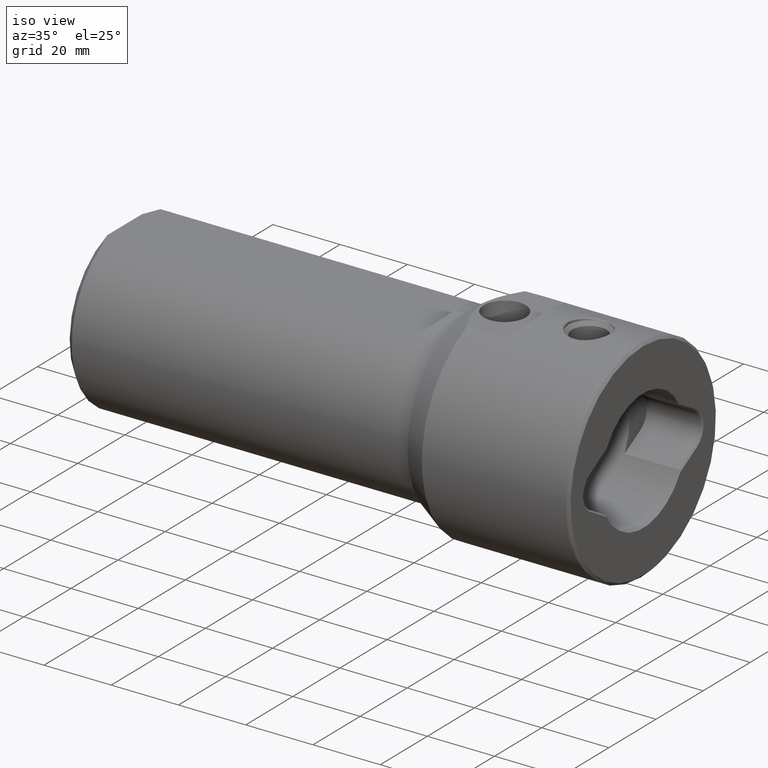
[diagram: clean part render]
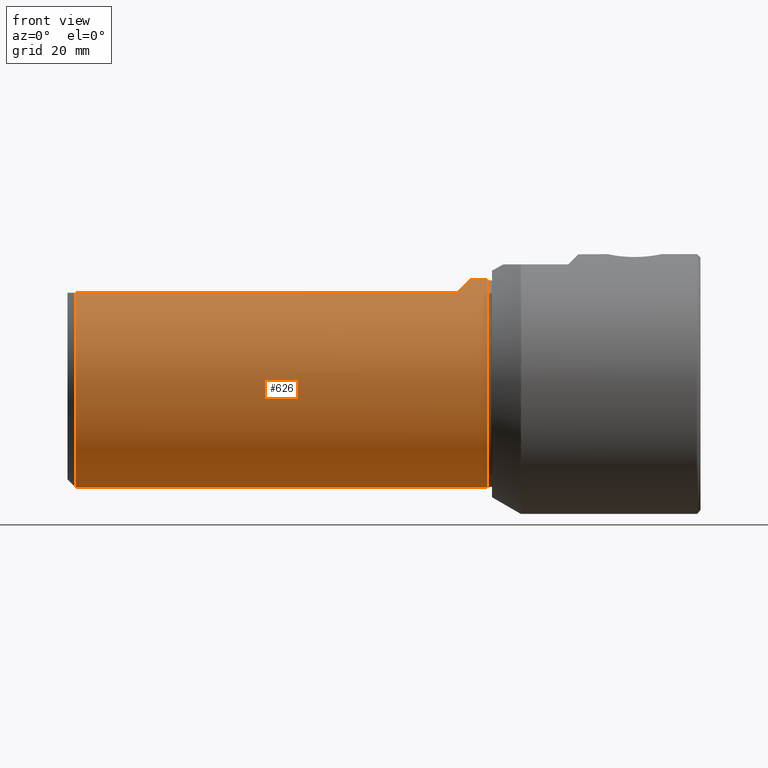
[diagram: tour spotlight — one face highlighted and labeled with its STEP entity id]
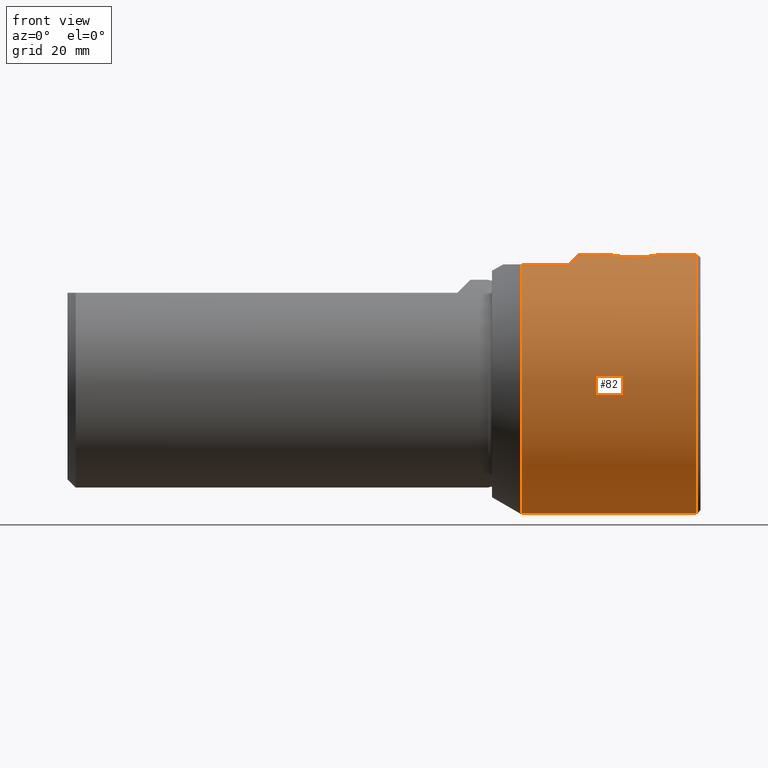
[diagram: tour spotlight — one face highlighted and labeled with its STEP entity id]
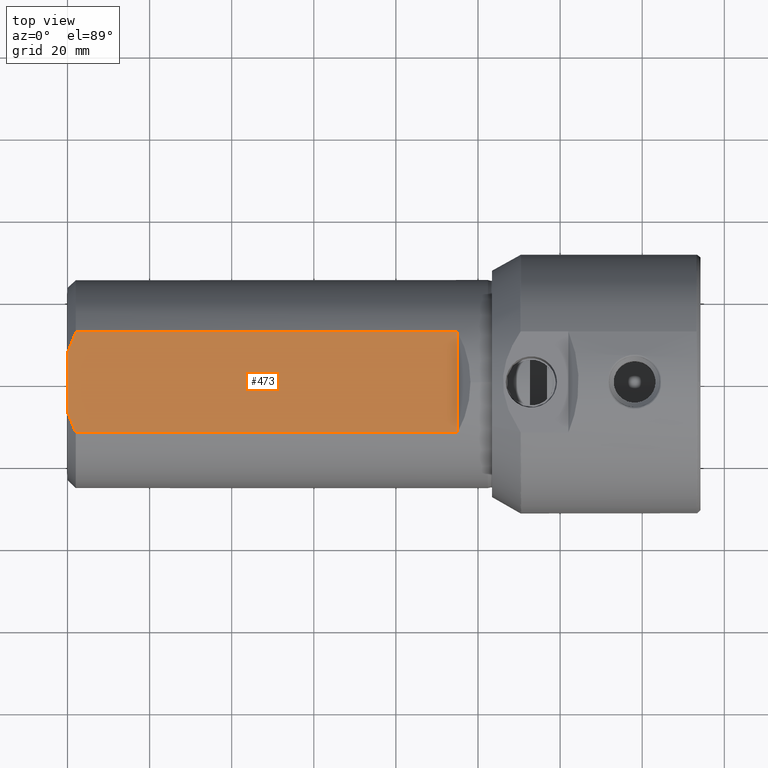
[diagram: tour spotlight — one face highlighted and labeled with its STEP entity id]
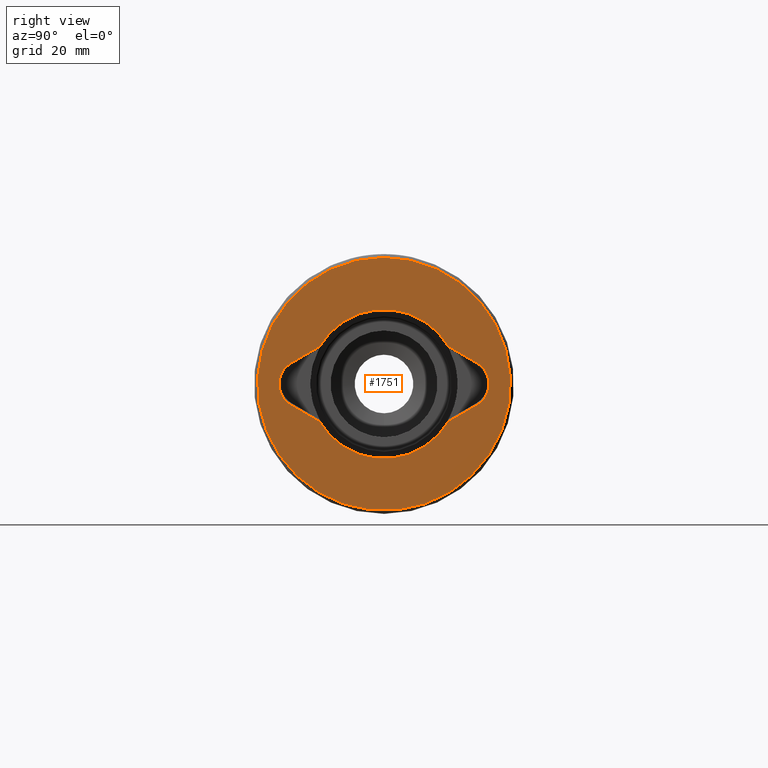
[diagram: tour spotlight — one face highlighted and labeled with its STEP entity id]
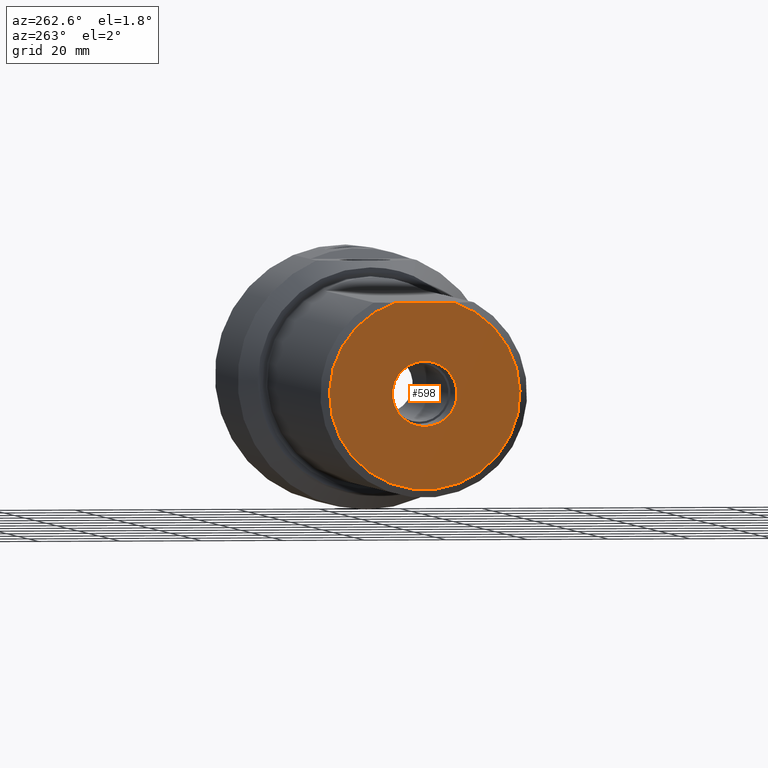
[diagram: tour spotlight — one face highlighted and labeled with its STEP entity id]
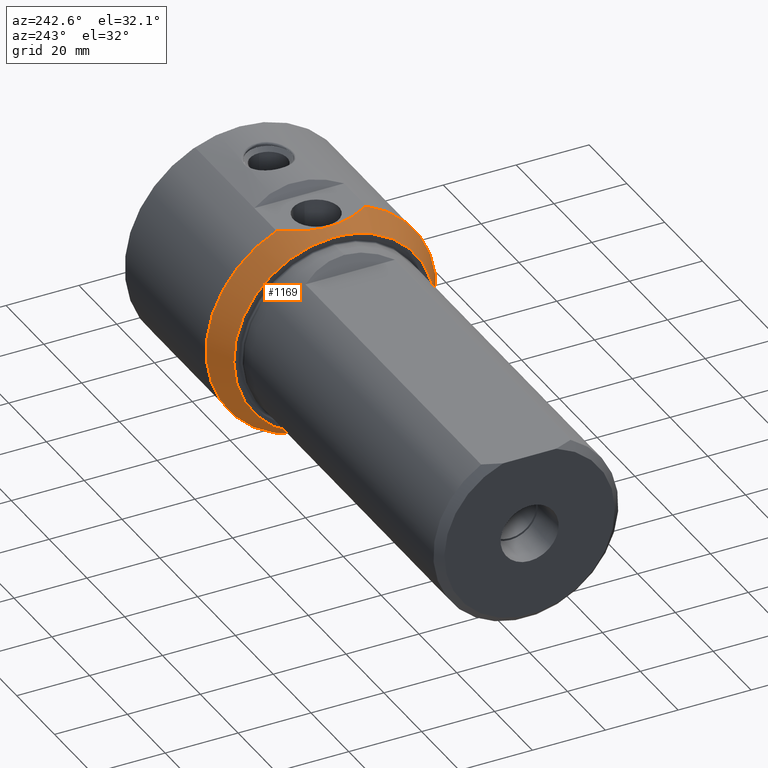
[diagram: tour spotlight — one face highlighted and labeled with its STEP entity id]
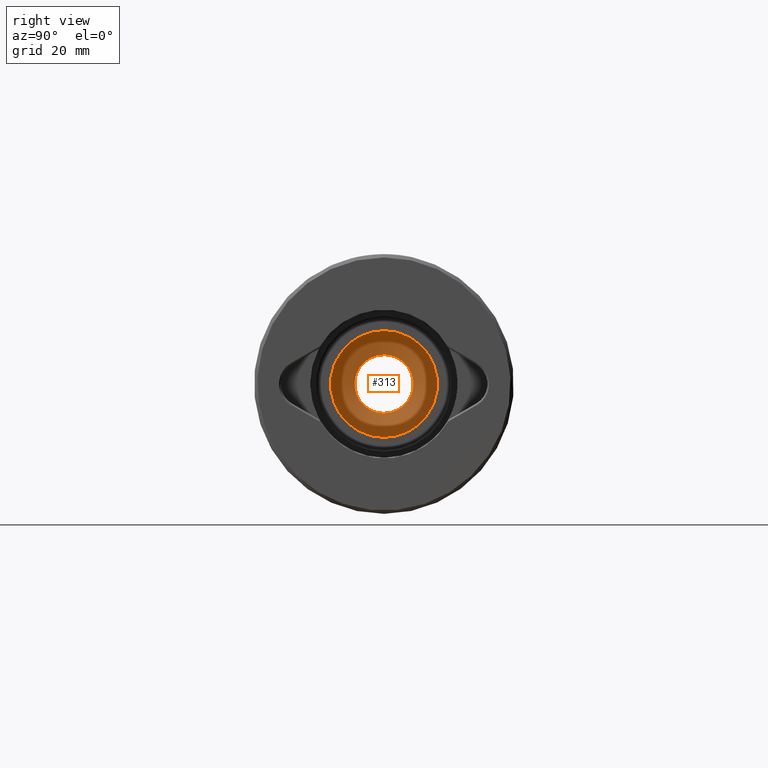
[diagram: tour spotlight — one face highlighted and labeled with its STEP entity id]
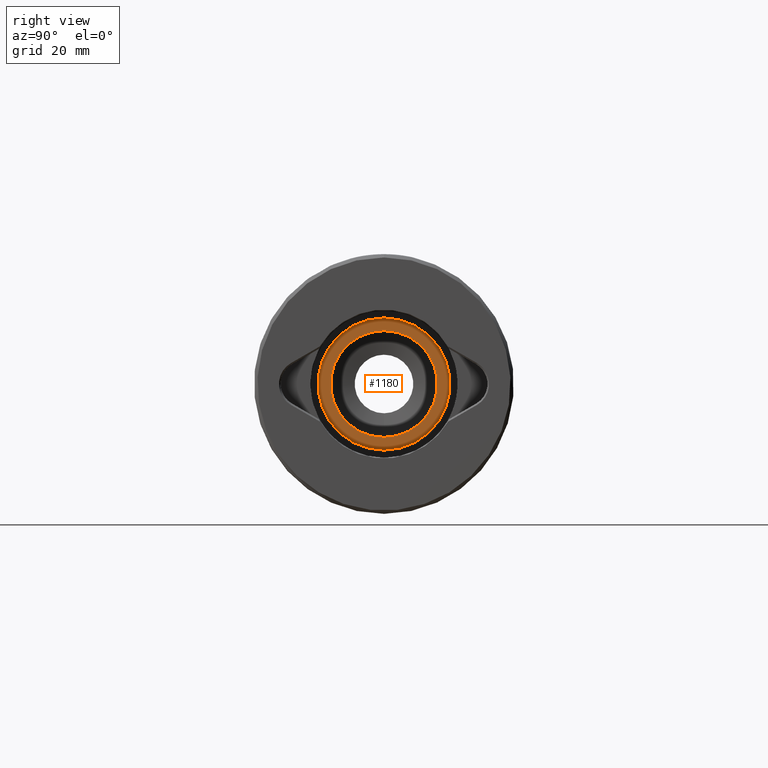
[diagram: tour spotlight — one face highlighted and labeled with its STEP entity id]
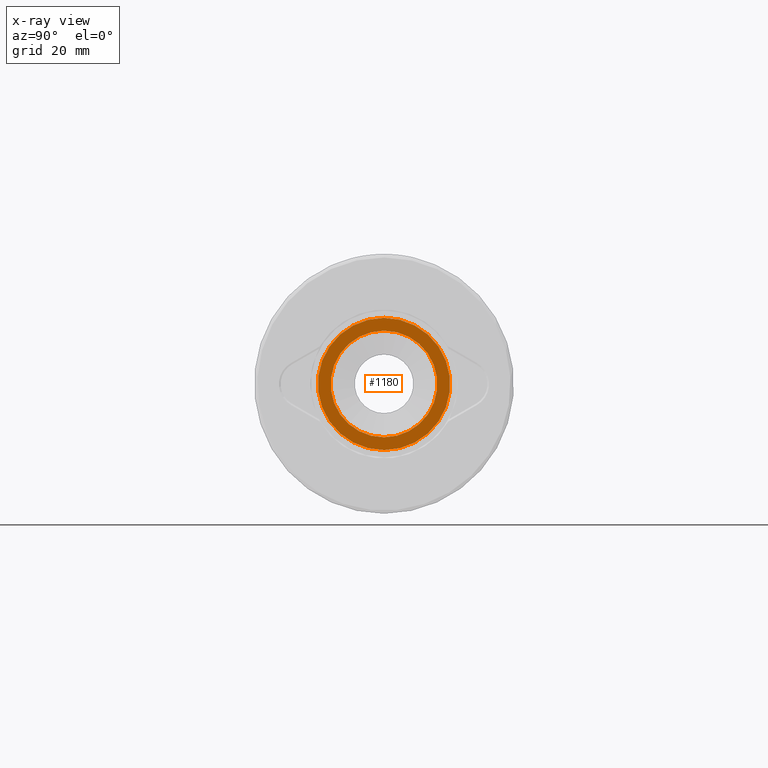
[diagram: x-ray of the same camera — body ghosted, this tour face saturated]
A machine part: a face-by-face anatomy tour. The part has 63 B-rep faces; the first image is the clean iso view, then the 8 largest visible faces are spotlighted one at a time (largest first), each with its STEP entity span.

Face 1 — front view, entity #626. In plain terms, the highlighted cylindrical surface (bore or boss wall) has radius 25.395 mm, axis along (-1, -0, -0).
Definition (entity closure, byte-faithful):
#13 = CARTESIAN_POINT ( 'NONE',  ( 1.999999999999992673, 0.0000000000000000000, 0.0000000000000000000 ) ) ;
#56 = CIRCLE ( 'NONE', #310, 25.39499999999999957 ) ;
#104 = DIRECTION ( 'NONE',  ( -1.000000000000000000, -0.0000000000000000000, -0.0000000000000000000 ) ) ;
#144 = CIRCLE ( 'NONE', #1590, 25.39499999999999957 ) ;
#175 = VERTEX_POINT ( 'NONE', #607 ) ;
#234 = CYLINDRICAL_SURFACE ( 'NONE', #1356, 25.39499999999999957 ) ;
#239 = ORIENTED_EDGE ( 'NONE', *, *, #1669, .T. ) ;
#280 = CARTESIAN_POINT ( 'NONE',  ( 1.999999999999991340, 12.27734193545166619, 22.23000000000000043 ) ) ;
#283 = CARTESIAN_POINT ( 'NONE',  ( 95.00000000000000000, 12.27734193545166441, 22.23000000000000043 ) ) ;
#310 = AXIS2_PLACEMENT_3D ( 'NONE', #1919, #104, #2280 ) ;
#494 = VERTEX_POINT ( 'NONE', #283 ) ;
#517 = FACE_OUTER_BOUND ( 'NONE', #1373, .T. ) ;
#607 = CARTESIAN_POINT ( 'NONE',  ( 95.00000000000000000, -12.27734193545166441, 22.23000000000000043 ) ) ;
#626 = ADVANCED_FACE ( 'NONE', ( #2363, #517 ), #234, .T. ) ;
#644 = CARTESIAN_POINT ( 'NONE',  ( 0.0000000000000000000, -12.27734193545166619, 22.23000000000000043 ) ) ;
#777 = DIRECTION ( 'NONE',  ( 0.0000000000000000000, 0.0000000000000000000, 1.000000000000000000 ) ) ;
#796 = EDGE_LOOP ( 'NONE', ( #855, #1506, #1996, #239 ) ) ;
#829 = DIRECTION ( 'NONE',  ( 1.000000000000000000, 0.0000000000000000000, 0.0000000000000000000 ) ) ;
#837 = CARTESIAN_POINT ( 'NONE',  ( 1.999999999999992673, -12.27734193545166619, 22.23000000000000043 ) ) ;
#855 = ORIENTED_EDGE ( 'NONE', *, *, #1455, .F. ) ;
#993 = DIRECTION ( 'NONE',  ( -1.000000000000000000, -0.0000000000000000000, -0.0000000000000000000 ) ) ;
#1041 = CARTESIAN_POINT ( 'NONE',  ( 102.4009288394512538, 0.0000000000000000000, 25.39499999999999957 ) ) ;
#1190 = VERTEX_POINT ( 'NONE', #1041 ) ;
#1355 = DIRECTION ( 'NONE',  ( -1.000000000000000000, -0.0000000000000000000, -0.0000000000000000000 ) ) ;
#1356 = AXIS2_PLACEMENT_3D ( 'NONE', #1706, #1355, #777 ) ;
#1361 = CARTESIAN_POINT ( 'NONE',  ( 0.0000000000000000000, 12.27734193545166619, 22.23000000000000043 ) ) ;
#1373 = EDGE_LOOP ( 'NONE', ( #1818 ) ) ;
#1380 = CARTESIAN_POINT ( 'NONE',  ( 95.00000000000000000, 12.27734193545166441, 22.23000000000000043 ) ) ;
#1455 = EDGE_CURVE ( 'NONE', #1568, #2052, #144, .T. ) ;
#1506 = ORIENTED_EDGE ( 'NONE', *, *, #1685, .T. ) ;
#1528 = VECTOR ( 'NONE', #993, 1000.000000000000000 ) ;
#1557 = CARTESIAN_POINT ( 'NONE',  ( 99.31560017178448163, 4.463289649284877925, 26.54560017178441811 ) ) ;
#1568 = VERTEX_POINT ( 'NONE', #280 ) ;
#1590 = AXIS2_PLACEMENT_3D ( 'NONE', #13, #2031, #1838 ) ;
#1603 = EDGE_CURVE ( 'NONE', #1190, #1190, #56, .T. ) ;
#1665 =( BOUNDED_CURVE ( )  B_SPLINE_CURVE ( 3, ( #1380, #1557, #2260, #1932 ),
 .UNSPECIFIED., .F., .F. ) 
 B_SPLINE_CURVE_WITH_KNOTS ( ( 4, 4 ),
 ( 2.636995217990977913, 3.646190089188608319 ),
 .UNSPECIFIED. ) 
 CURVE ( )  GEOMETRIC_REPRESENTATION_ITEM ( )  RATIONAL_B_SPLINE_CURVE ( ( 1.000000000000000000, 0.9169127781059263071, 0.9169127781059263071, 1.000000000000000000 ) ) 
 REPRESENTATION_ITEM ( '' )  );
#1669 = EDGE_CURVE ( 'NONE', #175, #2052, #2076, .T. ) ;
#1685 = EDGE_CURVE ( 'NONE', #1568, #494, #1699, .T. ) ;
#1699 = LINE ( 'NONE', #1361, #1940 ) ;
#1703 = EDGE_CURVE ( 'NONE', #494, #175, #1665, .T. ) ;
#1706 = CARTESIAN_POINT ( 'NONE',  ( 0.0000000000000000000, 0.0000000000000000000, 0.0000000000000000000 ) ) ;
#1818 = ORIENTED_EDGE ( 'NONE', *, *, #1603, .T. ) ;
#1838 = DIRECTION ( 'NONE',  ( 0.0000000000000000000, 0.0000000000000000000, 1.000000000000000000 ) ) ;
#1919 = CARTESIAN_POINT ( 'NONE',  ( 102.4009288394512538, 0.0000000000000000000, 0.0000000000000000000 ) ) ;
#1932 = CARTESIAN_POINT ( 'NONE',  ( 95.00000000000000000, -12.27734193545166441, 22.23000000000000043 ) ) ;
#1940 = VECTOR ( 'NONE', #829, 1000.000000000000000 ) ;
#1996 = ORIENTED_EDGE ( 'NONE', *, *, #1703, .T. ) ;
#2031 = DIRECTION ( 'NONE',  ( -1.000000000000000000, -0.0000000000000000000, -0.0000000000000000000 ) ) ;
#2052 = VERTEX_POINT ( 'NONE', #837 ) ;
#2076 = LINE ( 'NONE', #644, #1528 ) ;
#2260 = CARTESIAN_POINT ( 'NONE',  ( 99.31560017178448163, -4.463289649284870819, 26.54560017178441811 ) ) ;
#2280 = DIRECTION ( 'NONE',  ( 0.0000000000000000000, 0.0000000000000000000, 1.000000000000000000 ) ) ;
#2363 = FACE_OUTER_BOUND ( 'NONE', #796, .T. ) ;

Face 2 — front view, entity #82. In plain terms, the highlighted cylindrical surface (bore or boss wall) has radius 31.635 mm, axis along (-1, -0, -0).
Definition (entity closure, byte-faithful):
#12 = CARTESIAN_POINT ( 'NONE',  ( 131.5999999999999659, 0.6662268094102885563, 31.63500000000000512 ) ) ;
#14 = CARTESIAN_POINT ( 'NONE',  ( 122.0000000000000000, 12.32578597899539830, 29.13500000000000512 ) ) ;
#22 = CARTESIAN_POINT ( 'NONE',  ( 132.5506533533074673, -3.457613181252277457, 31.44666515607788426 ) ) ;
#42 = ORIENTED_EDGE ( 'NONE', *, *, #2128, .T. ) ;
#46 = CARTESIAN_POINT ( 'NONE',  ( 125.3796785495801487, 4.337091812975025107, 32.51467854958011827 ) ) ;
#47 = EDGE_CURVE ( 'NONE', #688, #91, #294, .T. ) ;
#52 = B_SPLINE_CURVE_WITH_KNOTS ( 'NONE', 3,
 ( #1096, #12, #706, #1273, #2007, #1102, #1798, #715, #540, #1986, #1438, #1257, #378, #888, #913, #1448 ),
 .UNSPECIFIED., .F., .F.,
 ( 4, 2, 2, 2, 2, 2, 2, 4 ),
 ( 0.0000000000000000000, 0.001970579614853971203, 0.002955869422280956588, 0.003941159229707942406, 0.004926449037134928224, 0.005911738844561913175, 0.006897028651988898994, 0.007882318459415884812 ),
 .UNSPECIFIED. ) ;
#59 = ORIENTED_EDGE ( 'NONE', *, *, #1234, .T. ) ;
#62 = CARTESIAN_POINT ( 'NONE',  ( 142.5017102966587856, -4.969066998023143888, 31.24300467834241601 ) ) ;
#82 = ADVANCED_FACE ( 'NONE', ( #87, #1417, #2160 ), #1471, .T. ) ;
#87 = FACE_OUTER_BOUND ( 'NONE', #1850, .T. ) ;
#91 = VERTEX_POINT ( 'NONE', #2217 ) ;
#100 = CARTESIAN_POINT ( 'NONE',  ( 137.3265461552899751, 6.585463044401746124, 30.94205481688282333 ) ) ;
#106 = CARTESIAN_POINT ( 'NONE',  ( 138.9653315842665506, 6.586521417680179624, 30.94182897074907501 ) ) ;
#114 = CARTESIAN_POINT ( 'NONE',  ( 144.6751916609865134, 0.6652512634396512414, 31.62970337563371359 ) ) ;
#119 = CARTESIAN_POINT ( 'NONE',  ( 136.1287134334713187, -6.323870600001309406, 30.99687469056651423 ) ) ;
#123 = CARTESIAN_POINT ( 'NONE',  ( 144.6999999999999602, 0.3327270208880150348, 31.63500000000000867 ) ) ;
#137 = CARTESIAN_POINT ( 'NONE',  ( 140.8598408556986783, 6.048681304741529097, 31.05160518033757455 ) ) ;
#269 = CARTESIAN_POINT ( 'NONE',  ( 153.2343145750507460, 0.0000000000000000000, 0.0000000000000000000 ) ) ;
#294 = B_SPLINE_CURVE_WITH_KNOTS ( 'NONE', 3,
 ( #398, #722, #1795, #1077, #587, #2204, #924, #1840, #419, #22, #2227, #1670, #565, #751, #1487, #2044, #1858, #578 ),
 .UNSPECIFIED., .F., .F.,
 ( 4, 2, 2, 2, 2, 2, 2, 2, 4 ),
 ( 0.01279259424008596241, 0.01377672293859905778, 0.01476085163711215315, 0.01574498033562524851, 0.01672910903413834388, 0.01771323773265143925, 0.01869736643116453462, 0.01968149512967762998, 0.02066562382819072535 ),
 .UNSPECIFIED. ) ;
#305 = EDGE_CURVE ( 'NONE', #2125, #975, #986, .T. ) ;
#314 = CARTESIAN_POINT ( 'NONE',  ( 144.6999999999999602, 0.0000000000000000000, 31.63500000000000512 ) ) ;
#336 = CARTESIAN_POINT ( 'NONE',  ( 141.1590925382374735, 5.901672339551494062, 31.08009094781710502 ) ) ;
#342 = EDGE_CURVE ( 'NONE', #91, #2244, #52, .T. ) ;
#348 = DIRECTION ( 'NONE',  ( 1.000000000000000000, 0.0000000000000000000, 0.0000000000000000000 ) ) ;
#357 = CIRCLE ( 'NONE', #1643, 31.63500000000000512 ) ;
#363 = DIRECTION ( 'NONE',  ( 1.000000000000000000, 0.0000000000000000000, 0.0000000000000000000 ) ) ;
#378 = CARTESIAN_POINT ( 'NONE',  ( 134.5795377672199322, 5.571550227173406533, 31.14096731286043607 ) ) ;
#394 = EDGE_LOOP ( 'NONE', ( #59, #1598, #879, #1853, #1981, #1247 ) ) ;
#398 = CARTESIAN_POINT ( 'NONE',  ( 135.7457329599233731, -6.170807685033554257, 31.02731631182966154 ) ) ;
#419 = CARTESIAN_POINT ( 'NONE',  ( 132.9146845297529751, -4.000113672255618091, 31.38227093374037935 ) ) ;
#470 = CARTESIAN_POINT ( 'NONE',  ( 136.5221245649671573, 6.435705635975445205, 30.97354956680355542 ) ) ;
#478 = CARTESIAN_POINT ( 'NONE',  ( 140.1711895141635864, -6.323909388189259850, 30.99686697625296006 ) ) ;
#483 = CARTESIAN_POINT ( 'NONE',  ( 144.6999999999999602, 0.0000000000000000000, 31.63500000000000512 ) ) ;
#508 = CARTESIAN_POINT ( 'NONE',  ( 137.3346684157334039, -6.586521417680179624, 30.94182897074907501 ) ) ;
#540 = CARTESIAN_POINT ( 'NONE',  ( 133.1188809254257137, 4.260572377719202386, 31.34773667874214809 ) ) ;
#542 = B_SPLINE_CURVE_WITH_KNOTS ( 'NONE', 3,
 ( #1950, #478, #1593, #1776, #1024, #2297, #508, #1743, #119, #1963 ),
 .UNSPECIFIED., .F., .F.,
 ( 4, 2, 2, 2, 4 ),
 ( 0.0000000000000000000, 0.001240983473876754867, 0.002481966947753509733, 0.003722950421630264600, 0.004963933895507019467 ),
 .UNSPECIFIED. ) ;
#565 = CARTESIAN_POINT ( 'NONE',  ( 131.9858768406900822, -2.267139640925206034, 31.55521729333176495 ) ) ;
#571 = AXIS2_PLACEMENT_3D ( 'NONE', #1864, #953, #933 ) ;
#577 = CARTESIAN_POINT ( 'NONE',  ( 141.9936101848507235, -5.381728688412128037, 31.17457240261829554 ) ) ;
#578 = CARTESIAN_POINT ( 'NONE',  ( 131.5999999999999659, 0.0000000000000000000, 31.63500000000000512 ) ) ;
#585 = CARTESIAN_POINT ( 'NONE',  ( 143.1811190745742408, -4.260572377719202386, 31.34773667874214809 ) ) ;
#587 = CARTESIAN_POINT ( 'NONE',  ( 134.3080842118202725, -5.382969198250447285, 31.17435764827537525 ) ) ;
#628 = B_SPLINE_CURVE_WITH_KNOTS ( 'NONE', 3,
 ( #2283, #137, #336, #1404, #847, #1739, #2137, #1935, #2131, #1960, #2294, #1029, #2304, #658, #2289, #114, #123, #483 ),
 .UNSPECIFIED., .F., .F.,
 ( 4, 2, 2, 2, 2, 2, 2, 2, 4 ),
 ( 0.01279259424008596241, 0.01377672293859905778, 0.01476085163711215315, 0.01574498033562524851, 0.01672910903413834388, 0.01771323773265143925, 0.01869736643116453462, 0.01968149512967762998, 0.02066562382819072535 ),
 .UNSPECIFIED. ) ;
#658 = CARTESIAN_POINT ( 'NONE',  ( 144.5047185915709633, 1.640848861925930935, 31.59397530531975917 ) ) ;
#675 = CARTESIAN_POINT ( 'NONE',  ( 136.1288104858363965, 6.323909388189259850, 30.99686697625296006 ) ) ;
#688 = VERTEX_POINT ( 'NONE', #1383 ) ;
#706 = CARTESIAN_POINT ( 'NONE',  ( 131.6968939040913256, 1.315651212169514306, 31.61399237298687126 ) ) ;
#715 = CARTESIAN_POINT ( 'NONE',  ( 132.9132556591819139, 3.998345751479671417, 31.38251056538712191 ) ) ;
#722 = CARTESIAN_POINT ( 'NONE',  ( 135.4401591443012762, -6.048681304741529097, 31.05160518033757455 ) ) ;
#723 = B_SPLINE_CURVE_WITH_KNOTS ( 'NONE', 3,
 ( #1294, #899, #1657, #2176, #1261, #2010, #1279, #952, #585, #1321, #62, #577, #2215, #1312, #2042, #1686 ),
 .UNSPECIFIED., .F., .F.,
 ( 4, 2, 2, 2, 2, 2, 2, 4 ),
 ( 0.0000000000000000000, 0.001970579614853971203, 0.002955869422280956588, 0.003941159229707942406, 0.004926449037134928224, 0.005911738844561913175, 0.006897028651988898994, 0.007882318459415884812 ),
 .UNSPECIFIED. ) ;
#742 = CARTESIAN_POINT ( 'NONE',  ( 122.0000000000000000, 12.32578597899539830, 29.13500000000000512 ) ) ;
#751 = CARTESIAN_POINT ( 'NONE',  ( 131.7952814084290196, -1.640848861925930935, 31.59397530531975917 ) ) ;
#771 = CARTESIAN_POINT ( 'NONE',  ( 125.3796785495801203, -4.337091812975017113, 32.51467854958011827 ) ) ;
#779 = EDGE_CURVE ( 'NONE', #2244, #1823, #1148, .T. ) ;
#836 = CARTESIAN_POINT ( 'NONE',  ( 139.7721463043777703, 6.437218221270364360, 30.97323467144481768 ) ) ;
#847 = CARTESIAN_POINT ( 'NONE',  ( 141.9919157881796252, 5.382969198250447285, 31.17435764827537525 ) ) ;
#850 = CARTESIAN_POINT ( 'NONE',  ( 140.5542670400765530, 6.170807685033554257, 31.02731631182966154 ) ) ;
#879 = ORIENTED_EDGE ( 'NONE', *, *, #2013, .T. ) ;
#884 = EDGE_LOOP ( 'NONE', ( #944, #909, #42, #1252 ) ) ;
#888 = CARTESIAN_POINT ( 'NONE',  ( 135.1476295202028552, 5.905285085678491086, 31.07940837872274642 ) ) ;
#892 = EDGE_CURVE ( 'NONE', #2086, #2125, #357, .T. ) ;
#899 = CARTESIAN_POINT ( 'NONE',  ( 144.6999999999999318, -0.6662268094102885563, 31.63500000000000512 ) ) ;
#909 = ORIENTED_EDGE ( 'NONE', *, *, #305, .T. ) ;
#913 = CARTESIAN_POINT ( 'NONE',  ( 135.4417040403233159, 6.049298741671810475, 31.05148238259003435 ) ) ;
#924 = CARTESIAN_POINT ( 'NONE',  ( 133.5580739424848105, -4.742152168405135981, 31.27851102722559773 ) ) ;
#933 = DIRECTION ( 'NONE',  ( 0.0000000000000000000, 0.0000000000000000000, 1.000000000000000000 ) ) ;
#944 = ORIENTED_EDGE ( 'NONE', *, *, #892, .T. ) ;
#952 = CARTESIAN_POINT ( 'NONE',  ( 143.3867443408180122, -3.998345751479671417, 31.38251056538712191 ) ) ;
#953 = DIRECTION ( 'NONE',  ( -1.000000000000000000, -0.0000000000000000000, -0.0000000000000000000 ) ) ;
#962 = DIRECTION ( 'NONE',  ( -1.000000000000000000, -0.0000000000000000000, -0.0000000000000000000 ) ) ;
#963 = ORIENTED_EDGE ( 'NONE', *, *, #1614, .T. ) ;
#975 = VERTEX_POINT ( 'NONE', #742 ) ;
#984 = VERTEX_POINT ( 'NONE', #1747 ) ;
#986 = LINE ( 'NONE', #1965, #1559 ) ;
#1004 = DIRECTION ( 'NONE',  ( 0.0000000000000000000, 0.0000000000000000000, -1.000000000000000000 ) ) ;
#1024 = CARTESIAN_POINT ( 'NONE',  ( 138.5589391851679579, -6.622979060358136216, 30.93395179032373576 ) ) ;
#1029 = CARTESIAN_POINT ( 'NONE',  ( 144.1960530629409902, 2.573161673297229779, 31.53160360223775882 ) ) ;
#1031 = VERTEX_POINT ( 'NONE', #1538 ) ;
#1056 = AXIS2_PLACEMENT_3D ( 'NONE', #269, #2099, #1004 ) ;
#1077 = CARTESIAN_POINT ( 'NONE',  ( 134.5762084841699675, -5.569252110138257272, 31.14137473943193513 ) ) ;
#1096 = CARTESIAN_POINT ( 'NONE',  ( 131.5999999999999659, 0.0000000000000000000, 31.63500000000000512 ) ) ;
#1102 = CARTESIAN_POINT ( 'NONE',  ( 132.3859899190538556, 3.167990285812800622, 31.47738153234020686 ) ) ;
#1148 = B_SPLINE_CURVE_WITH_KNOTS ( 'NONE', 3,
 ( #1546, #675, #470, #100, #2104, #1730, #106, #836, #1377, #1741 ),
 .UNSPECIFIED., .F., .F.,
 ( 4, 2, 2, 2, 4 ),
 ( 0.0000000000000000000, 0.001240983473876754867, 0.002481966947753509733, 0.003722950421630264600, 0.004963933895507019467 ),
 .UNSPECIFIED. ) ;
#1234 = EDGE_CURVE ( 'NONE', #1823, #1731, #628, .T. ) ;
#1247 = ORIENTED_EDGE ( 'NONE', *, *, #779, .T. ) ;
#1252 = ORIENTED_EDGE ( 'NONE', *, *, #2255, .T. ) ;
#1257 = CARTESIAN_POINT ( 'NONE',  ( 134.3063898151492594, 5.381728688412128037, 31.17457240261829554 ) ) ;
#1261 = CARTESIAN_POINT ( 'NONE',  ( 144.1949302642391046, -2.575516118635866825, 31.53138796986526415 ) ) ;
#1273 = CARTESIAN_POINT ( 'NONE',  ( 131.9849905616314629, 2.265165056127945054, 31.55539270847909705 ) ) ;
#1279 = CARTESIAN_POINT ( 'NONE',  ( 143.7524804788475592, -3.452576960663543471, 31.44723279504423630 ) ) ;
#1294 = CARTESIAN_POINT ( 'NONE',  ( 144.6999999999999602, 0.0000000000000000000, 31.63500000000000512 ) ) ;
#1312 = CARTESIAN_POINT ( 'NONE',  ( 141.1523704797970993, -5.905285085678491086, 31.07940837872274642 ) ) ;
#1321 = CARTESIAN_POINT ( 'NONE',  ( 142.7391720171458758, -4.744863363156295755, 31.27809686554661184 ) ) ;
#1360 = LINE ( 'NONE', #1498, #1694 ) ;
#1377 = CARTESIAN_POINT ( 'NONE',  ( 140.1712865665286074, 6.323870600001309406, 30.99687469056651423 ) ) ;
#1383 = CARTESIAN_POINT ( 'NONE',  ( 135.7457329599233731, -6.170807685033554257, 31.02731631182966154 ) ) ;
#1394 = CIRCLE ( 'NONE', #1056, 31.63500000000000512 ) ;
#1404 = CARTESIAN_POINT ( 'NONE',  ( 141.7237915158298733, 5.569252110138257272, 31.14137473943193513 ) ) ;
#1417 = FACE_OUTER_BOUND ( 'NONE', #884, .T. ) ;
#1438 = CARTESIAN_POINT ( 'NONE',  ( 133.7982897033411405, 4.969066998023143888, 31.24300467834241601 ) ) ;
#1448 = CARTESIAN_POINT ( 'NONE',  ( 135.7457329599007778, 6.170807685024521483, 31.02731631183146277 ) ) ;
#1471 = CYLINDRICAL_SURFACE ( 'NONE', #571, 31.63500000000000512 ) ;
#1487 = CARTESIAN_POINT ( 'NONE',  ( 131.7227568092800141, -1.320580198760961332, 31.60912467647156987 ) ) ;
#1498 = CARTESIAN_POINT ( 'NONE',  ( 0.0000000000000000000, -12.32578597899540718, 29.13500000000000512 ) ) ;
#1507 = CARTESIAN_POINT ( 'NONE',  ( 122.0000000000000000, -12.32578597899540007, 29.13500000000000512 ) ) ;
#1538 = CARTESIAN_POINT ( 'NONE',  ( 140.5542670400991483, -6.170807685024521483, 31.02731631183146277 ) ) ;
#1546 = CARTESIAN_POINT ( 'NONE',  ( 135.7457329599007778, 6.170807685024521483, 31.02731631183146277 ) ) ;
#1559 = VECTOR ( 'NONE', #348, 1000.000000000000000 ) ;
#1593 = CARTESIAN_POINT ( 'NONE',  ( 139.7778754350327972, -6.435705635975445205, 30.97354956680355542 ) ) ;
#1598 = ORIENTED_EDGE ( 'NONE', *, *, #2108, .T. ) ;
#1614 = EDGE_CURVE ( 'NONE', #984, #984, #1394, .T. ) ;
#1620 = CARTESIAN_POINT ( 'NONE',  ( 110.5071796769724415, 0.0000000000000000000, 0.0000000000000000000 ) ) ;
#1643 = AXIS2_PLACEMENT_3D ( 'NONE', #1620, #363, #2157 ) ;
#1657 = CARTESIAN_POINT ( 'NONE',  ( 144.6031060959085721, -1.315651212169514306, 31.61399237298687126 ) ) ;
#1670 = CARTESIAN_POINT ( 'NONE',  ( 132.1039469370589643, -2.573161673297229779, 31.53160360223775882 ) ) ;
#1686 = CARTESIAN_POINT ( 'NONE',  ( 140.5542670400991483, -6.170807685024521483, 31.02731631183146277 ) ) ;
#1694 = VECTOR ( 'NONE', #962, 1000.000000000000000 ) ;
#1726 = CARTESIAN_POINT ( 'NONE',  ( 122.0000000000000000, -12.32578597899540007, 29.13500000000000512 ) ) ;
#1730 = CARTESIAN_POINT ( 'NONE',  ( 138.5590643895922653, 6.622971511814619738, 30.93395340647080616 ) ) ;
#1731 = VERTEX_POINT ( 'NONE', #314 ) ;
#1739 = CARTESIAN_POINT ( 'NONE',  ( 142.5001361595587923, 4.970480210993757808, 31.24277930408909754 ) ) ;
#1741 = CARTESIAN_POINT ( 'NONE',  ( 140.5542670400765530, 6.170807685033554257, 31.02731631182966154 ) ) ;
#1743 = CARTESIAN_POINT ( 'NONE',  ( 136.5278536956222410, -6.437218221270364360, 30.97323467144481768 ) ) ;
#1747 = CARTESIAN_POINT ( 'NONE',  ( 153.2343145750507460, 0.0000000000000000000, -31.63500000000000512 ) ) ;
#1776 = CARTESIAN_POINT ( 'NONE',  ( 138.9734538447099794, -6.585463044401746124, 30.94205481688282333 ) ) ;
#1795 = CARTESIAN_POINT ( 'NONE',  ( 135.1409074617624810, -5.901672339551494062, 31.08009094781710502 ) ) ;
#1798 = CARTESIAN_POINT ( 'NONE',  ( 132.5475195211523669, 3.452576960663543471, 31.44723279504423630 ) ) ;
#1823 = VERTEX_POINT ( 'NONE', #850 ) ;
#1840 = CARTESIAN_POINT ( 'NONE',  ( 133.1159925801048587, -4.257096638819273693, 31.34821187047733559 ) ) ;
#1850 = EDGE_LOOP ( 'NONE', ( #963 ) ) ;
#1853 = ORIENTED_EDGE ( 'NONE', *, *, #47, .T. ) ;
#1858 = CARTESIAN_POINT ( 'NONE',  ( 131.5999999999999375, -0.3327270208880150348, 31.63500000000000867 ) ) ;
#1864 = CARTESIAN_POINT ( 'NONE',  ( 0.0000000000000000000, 0.0000000000000000000, 0.0000000000000000000 ) ) ;
#1880 = CARTESIAN_POINT ( 'NONE',  ( 135.7457329599007778, 6.170807685024521483, 31.02731631183146277 ) ) ;
#1935 = CARTESIAN_POINT ( 'NONE',  ( 143.1840074198949821, 4.257096638819273693, 31.34821187047733559 ) ) ;
#1950 = CARTESIAN_POINT ( 'NONE',  ( 140.5542670400991483, -6.170807685024521483, 31.02731631183146277 ) ) ;
#1960 = CARTESIAN_POINT ( 'NONE',  ( 143.7493466466925156, 3.457613181252277457, 31.44666515607788426 ) ) ;
#1963 = CARTESIAN_POINT ( 'NONE',  ( 135.7457329599233731, -6.170807685033554257, 31.02731631182966154 ) ) ;
#1965 = CARTESIAN_POINT ( 'NONE',  ( 0.0000000000000000000, 12.32578597899540718, 29.13500000000000512 ) ) ;
#1981 = ORIENTED_EDGE ( 'NONE', *, *, #342, .T. ) ;
#1986 = CARTESIAN_POINT ( 'NONE',  ( 133.5608279828540503, 4.744863363156295755, 31.27809686554661184 ) ) ;
#2007 = CARTESIAN_POINT ( 'NONE',  ( 132.1050697357608499, 2.575516118635866825, 31.53138796986526415 ) ) ;
#2010 = CARTESIAN_POINT ( 'NONE',  ( 143.9140100809460705, -3.167990285812800622, 31.47738153234020686 ) ) ;
#2013 = EDGE_CURVE ( 'NONE', #1031, #688, #542, .T. ) ;
#2032 = CARTESIAN_POINT ( 'NONE',  ( 110.5071796769724699, -12.32578597899541428, 29.13500000000000512 ) ) ;
#2042 = CARTESIAN_POINT ( 'NONE',  ( 140.8582959596766386, -6.049298741671810475, 31.05148238259003435 ) ) ;
#2044 = CARTESIAN_POINT ( 'NONE',  ( 131.6248083390134127, -0.6652512634396512414, 31.62970337563371359 ) ) ;
#2086 = VERTEX_POINT ( 'NONE', #2032 ) ;
#2099 = DIRECTION ( 'NONE',  ( -1.000000000000000000, -0.0000000000000000000, -0.0000000000000000000 ) ) ;
#2104 = CARTESIAN_POINT ( 'NONE',  ( 137.7410608148319966, 6.622979060358136216, 30.93395179032373576 ) ) ;
#2108 = EDGE_CURVE ( 'NONE', #1731, #1031, #723, .T. ) ;
#2125 = VERTEX_POINT ( 'NONE', #2191 ) ;
#2128 = EDGE_CURVE ( 'NONE', #975, #2309, #2168, .T. ) ;
#2131 = CARTESIAN_POINT ( 'NONE',  ( 143.3853154702469794, 4.000113672255618091, 31.38227093374037935 ) ) ;
#2137 = CARTESIAN_POINT ( 'NONE',  ( 142.7419260575150872, 4.742152168405135981, 31.27851102722559773 ) ) ;
#2157 = DIRECTION ( 'NONE',  ( 0.0000000000000000000, 0.0000000000000000000, -1.000000000000000000 ) ) ;
#2160 = FACE_BOUND ( 'NONE', #394, .T. ) ;
#2168 =( BOUNDED_CURVE ( )  B_SPLINE_CURVE ( 3, ( #14, #46, #771, #1507 ),
 .UNSPECIFIED., .F., .F. ) 
 B_SPLINE_CURVE_WITH_KNOTS ( ( 4, 4 ),
 ( 2.741368304527763033, 3.541817002651823199 ),
 .UNSPECIFIED. ) 
 CURVE ( )  GEOMETRIC_REPRESENTATION_ITEM ( )  RATIONAL_B_SPLINE_CURVE ( ( 1.000000000000000000, 0.9473157367894211589, 0.9473157367894211589, 1.000000000000000000 ) ) 
 REPRESENTATION_ITEM ( '' )  );
#2176 = CARTESIAN_POINT ( 'NONE',  ( 144.3150094383684916, -2.265165056127945054, 31.55539270847909705 ) ) ;
#2191 = CARTESIAN_POINT ( 'NONE',  ( 110.5071796769724415, 12.32578597899541251, 29.13500000000000512 ) ) ;
#2204 = CARTESIAN_POINT ( 'NONE',  ( 133.7998638404411338, -4.970480210993757808, 31.24277930408909754 ) ) ;
#2215 = CARTESIAN_POINT ( 'NONE',  ( 141.7204622327800223, -5.571550227173406533, 31.14096731286043607 ) ) ;
#2217 = CARTESIAN_POINT ( 'NONE',  ( 131.5999999999999659, 0.0000000000000000000, 31.63500000000000512 ) ) ;
#2227 = CARTESIAN_POINT ( 'NONE',  ( 132.3872134279897921, -3.170557129041912781, 31.47714653867248558 ) ) ;
#2244 = VERTEX_POINT ( 'NONE', #1880 ) ;
#2255 = EDGE_CURVE ( 'NONE', #2309, #2086, #1360, .T. ) ;
#2283 = CARTESIAN_POINT ( 'NONE',  ( 140.5542670400765530, 6.170807685033554257, 31.02731631182966154 ) ) ;
#2289 = CARTESIAN_POINT ( 'NONE',  ( 144.5772431907200541, 1.320580198760961332, 31.60912467647156987 ) ) ;
#2294 = CARTESIAN_POINT ( 'NONE',  ( 143.9127865720102193, 3.170557129041912781, 31.47714653867248558 ) ) ;
#2297 = CARTESIAN_POINT ( 'NONE',  ( 137.7409356104077176, -6.622971511814619738, 30.93395340647080616 ) ) ;
#2304 = CARTESIAN_POINT ( 'NONE',  ( 144.3141231593098439, 2.267139640925206034, 31.55521729333176495 ) ) ;
#2309 = VERTEX_POINT ( 'NONE', #1726 ) ;

Face 3 — top view, entity #473. In plain terms, the highlighted planar face has unit normal (0, 0, -1).
Definition (entity closure, byte-faithful):
#29 = LINE ( 'NONE', #167, #2307 ) ;
#64 = CARTESIAN_POINT ( 'NONE',  ( 95.00000000000000000, -31.63500000000000512, 22.23000000000000043 ) ) ;
#149 = ORIENTED_EDGE ( 'NONE', *, *, #1669, .F. ) ;
#167 = CARTESIAN_POINT ( 'NONE',  ( 0.0000000000000000000, 0.0000000000000000000, 22.23000000000000043 ) ) ;
#170 = CARTESIAN_POINT ( 'NONE',  ( 1.247595035765744376, 10.66130014700905626, 22.23000000000000043 ) ) ;
#175 = VERTEX_POINT ( 'NONE', #607 ) ;
#186 = EDGE_CURVE ( 'NONE', #175, #494, #707, .T. ) ;
#199 = CARTESIAN_POINT ( 'NONE',  ( 1.999999999999992673, -12.27734193545166619, 22.23000000000000043 ) ) ;
#205 = ORIENTED_EDGE ( 'NONE', *, *, #858, .F. ) ;
#219 = DIRECTION ( 'NONE',  ( -1.000000000000000000, 0.0000000000000000000, -0.0000000000000000000 ) ) ;
#268 = VERTEX_POINT ( 'NONE', #876 ) ;
#280 = CARTESIAN_POINT ( 'NONE',  ( 1.999999999999991340, 12.27734193545166619, 22.23000000000000043 ) ) ;
#283 = CARTESIAN_POINT ( 'NONE',  ( 95.00000000000000000, 12.27734193545166441, 22.23000000000000043 ) ) ;
#349 = B_SPLINE_CURVE_WITH_KNOTS ( 'NONE', 3,
 ( #1432, #1803, #2196, #170, #371, #553 ),
 .UNSPECIFIED., .F., .F.,
 ( 4, 2, 4 ),
 ( 0.06986400231603798194, 0.07255246614353465240, 0.07524092997103132285 ),
 .UNSPECIFIED. ) ;
#352 = EDGE_CURVE ( 'NONE', #2202, #1568, #349, .T. ) ;
#371 = CARTESIAN_POINT ( 'NONE',  ( 1.612592265951199977, 11.47601055135454473, 22.23000000000000043 ) ) ;
#417 = CARTESIAN_POINT ( 'NONE',  ( 0.0000000000000000000, 7.290618972350712212, 22.23000000000000043 ) ) ;
#473 = ADVANCED_FACE ( 'NONE', ( #2048 ), #557, .F. ) ;
#494 = VERTEX_POINT ( 'NONE', #283 ) ;
#514 = AXIS2_PLACEMENT_3D ( 'NONE', #1836, #2026, #219 ) ;
#537 = VECTOR ( 'NONE', #1168, 1000.000000000000000 ) ;
#553 = CARTESIAN_POINT ( 'NONE',  ( 1.999999999999991340, 12.27734193545166619, 22.23000000000000043 ) ) ;
#557 = PLANE ( 'NONE',  #514 ) ;
#607 = CARTESIAN_POINT ( 'NONE',  ( 95.00000000000000000, -12.27734193545166441, 22.23000000000000043 ) ) ;
#644 = CARTESIAN_POINT ( 'NONE',  ( 0.0000000000000000000, -12.27734193545166619, 22.23000000000000043 ) ) ;
#707 = LINE ( 'NONE', #64, #537 ) ;
#829 = DIRECTION ( 'NONE',  ( 1.000000000000000000, 0.0000000000000000000, 0.0000000000000000000 ) ) ;
#837 = CARTESIAN_POINT ( 'NONE',  ( 1.999999999999992673, -12.27734193545166619, 22.23000000000000043 ) ) ;
#858 = EDGE_CURVE ( 'NONE', #268, #2202, #29, .T. ) ;
#876 = CARTESIAN_POINT ( 'NONE',  ( 0.0000000000000000000, -7.290618972350712212, 22.23000000000000043 ) ) ;
#941 = EDGE_LOOP ( 'NONE', ( #2121, #1401, #1481, #205, #1674, #149 ) ) ;
#993 = DIRECTION ( 'NONE',  ( -1.000000000000000000, -0.0000000000000000000, -0.0000000000000000000 ) ) ;
#1168 = DIRECTION ( 'NONE',  ( -0.0000000000000000000, 1.000000000000000000, -0.0000000000000000000 ) ) ;
#1224 = DIRECTION ( 'NONE',  ( -0.0000000000000000000, 1.000000000000000000, 0.0000000000000000000 ) ) ;
#1361 = CARTESIAN_POINT ( 'NONE',  ( 0.0000000000000000000, 12.27734193545166619, 22.23000000000000043 ) ) ;
#1401 = ORIENTED_EDGE ( 'NONE', *, *, #1685, .F. ) ;
#1427 = EDGE_CURVE ( 'NONE', #2052, #268, #1689, .T. ) ;
#1432 = CARTESIAN_POINT ( 'NONE',  ( 0.0000000000000000000, 7.290618972350712212, 22.23000000000000043 ) ) ;
#1481 = ORIENTED_EDGE ( 'NONE', *, *, #352, .F. ) ;
#1528 = VECTOR ( 'NONE', #993, 1000.000000000000000 ) ;
#1568 = VERTEX_POINT ( 'NONE', #280 ) ;
#1669 = EDGE_CURVE ( 'NONE', #175, #2052, #2076, .T. ) ;
#1674 = ORIENTED_EDGE ( 'NONE', *, *, #1427, .F. ) ;
#1685 = EDGE_CURVE ( 'NONE', #1568, #494, #1699, .T. ) ;
#1689 = B_SPLINE_CURVE_WITH_KNOTS ( 'NONE', 3,
 ( #199, #1813, #2190, #2009 ),
 .UNSPECIFIED., .F., .F.,
 ( 4, 4 ),
 ( 0.04965705597090419587, 0.05503504284620091419 ),
 .UNSPECIFIED. ) ;
#1699 = LINE ( 'NONE', #1361, #1940 ) ;
#1803 = CARTESIAN_POINT ( 'NONE',  ( 0.2667945773146068733, 8.146740950463467357, 22.22999999999999687 ) ) ;
#1813 = CARTESIAN_POINT ( 'NONE',  ( 1.221059764948491333, -10.66614731587253928, 22.23000000000000043 ) ) ;
#1836 = CARTESIAN_POINT ( 'NONE',  ( 0.0000000000000000000, -31.63500000000000512, 22.23000000000000043 ) ) ;
#1940 = VECTOR ( 'NONE', #829, 1000.000000000000000 ) ;
#2009 = CARTESIAN_POINT ( 'NONE',  ( 0.0000000000000000000, -7.290618972350712212, 22.23000000000000043 ) ) ;
#2026 = DIRECTION ( 'NONE',  ( 0.0000000000000000000, 0.0000000000000000000, -1.000000000000000000 ) ) ;
#2048 = FACE_OUTER_BOUND ( 'NONE', #941, .T. ) ;
#2052 = VERTEX_POINT ( 'NONE', #837 ) ;
#2076 = LINE ( 'NONE', #644, #1528 ) ;
#2121 = ORIENTED_EDGE ( 'NONE', *, *, #186, .T. ) ;
#2190 = CARTESIAN_POINT ( 'NONE',  ( 0.5364557868656303352, -9.012061716967892266, 22.23000000000000043 ) ) ;
#2196 = CARTESIAN_POINT ( 'NONE',  ( 0.5748345547890947316, 8.997710781739439057, 22.23000000000000043 ) ) ;
#2202 = VERTEX_POINT ( 'NONE', #417 ) ;
#2307 = VECTOR ( 'NONE', #1224, 1000.000000000000000 ) ;

Face 4 — right view, entity #1751. In plain terms, the highlighted planar face has unit normal (-1, 0, -0).
Definition (entity closure, byte-faithful):
#6 = CARTESIAN_POINT ( 'NONE',  ( 154.1999999999999886, 31.00125000002844189, -0.2879534468075853892 ) ) ;
#71 = CARTESIAN_POINT ( 'NONE',  ( 154.1999999999999886, -15.67665779286534722, 9.135610882834377833 ) ) ;
#92 = DIRECTION ( 'NONE',  ( -1.000000000000000000, -0.0000000000000000000, -0.0000000000000000000 ) ) ;
#174 = AXIS2_PLACEMENT_3D ( 'NONE', #2182, #1631, #552 ) ;
#179 = ORIENTED_EDGE ( 'NONE', *, *, #1797, .T. ) ;
#211 = VERTEX_POINT ( 'NONE', #437 ) ;
#288 = DIRECTION ( 'NONE',  ( 0.0000000000000000000, -0.8660254037844399289, 0.4999999999999977240 ) ) ;
#300 = DIRECTION ( 'NONE',  ( 0.0000000000000000000, 0.0000000000000000000, 1.000000000000000000 ) ) ;
#331 = VERTEX_POINT ( 'NONE', #1829 ) ;
#380 = VECTOR ( 'NONE', #1278, 1000.000000000000000 ) ;
#391 = ORIENTED_EDGE ( 'NONE', *, *, #584, .T. ) ;
#397 = EDGE_CURVE ( 'NONE', #717, #1978, #1325, .T. ) ;
#428 = VERTEX_POINT ( 'NONE', #673 ) ;
#437 = CARTESIAN_POINT ( 'NONE',  ( 154.1999999999999886, 22.65000000002844160, 5.109549882377431018 ) ) ;
#454 = CARTESIAN_POINT ( 'NONE',  ( 154.1999999999999886, 22.65000000002844160, -5.109549882377415031 ) ) ;
#462 = LINE ( 'NONE', #1398, #2049 ) ;
#552 = DIRECTION ( 'NONE',  ( 0.0000000000000000000, 0.0000000000000000000, 1.000000000000000000 ) ) ;
#584 = EDGE_CURVE ( 'NONE', #1308, #211, #649, .T. ) ;
#640 = CARTESIAN_POINT ( 'NONE',  ( 154.1999999999999886, 15.67665779286535965, -9.135610882834360069 ) ) ;
#641 = CARTESIAN_POINT ( 'NONE',  ( 154.1999999999999886, -19.70000000000004903, 6.071532165918824830E-15 ) ) ;
#648 = DIRECTION ( 'NONE',  ( -0.0000000000000000000, 0.0000000000000000000, 1.000000000000000000 ) ) ;
#649 = LINE ( 'NONE', #1529, #680 ) ;
#670 = EDGE_CURVE ( 'NONE', #428, #428, #958, .T. ) ;
#673 = CARTESIAN_POINT ( 'NONE',  ( 154.1999999999999886, 0.0000000000000000000, 30.83500000000000441 ) ) ;
#680 = VECTOR ( 'NONE', #807, 1000.000000000000000 ) ;
#710 = ORIENTED_EDGE ( 'NONE', *, *, #670, .F. ) ;
#717 = VERTEX_POINT ( 'NONE', #640 ) ;
#807 = DIRECTION ( 'NONE',  ( 0.0000000000000000000, 0.8660254037844398178, -0.4999999999999979461 ) ) ;
#824 = VERTEX_POINT ( 'NONE', #1973 ) ;
#826 = DIRECTION ( 'NONE',  ( -1.000000000000000000, 0.0000000000000000000, -0.0000000000000000000 ) ) ;
#852 = LINE ( 'NONE', #6, #380 ) ;
#864 = EDGE_LOOP ( 'NONE', ( #179, #912, #1793, #391, #992, #1920, #2148, #1740 ) ) ;
#903 = FACE_BOUND ( 'NONE', #864, .T. ) ;
#912 = ORIENTED_EDGE ( 'NONE', *, *, #1335, .T. ) ;
#958 = CIRCLE ( 'NONE', #2305, 30.83500000000000441 ) ;
#987 = FACE_OUTER_BOUND ( 'NONE', #1562, .T. ) ;
#992 = ORIENTED_EDGE ( 'NONE', *, *, #1349, .T. ) ;
#1019 = CIRCLE ( 'NONE', #1832, 5.900000000056838445 ) ;
#1034 = EDGE_CURVE ( 'NONE', #1978, #824, #1272, .T. ) ;
#1060 = CARTESIAN_POINT ( 'NONE',  ( 154.1999999999999886, 19.70000000000003837, 8.673617379884035472E-15 ) ) ;
#1079 = DIRECTION ( 'NONE',  ( 0.0000000000000000000, 0.0000000000000000000, 1.000000000000000000 ) ) ;
#1202 = VERTEX_POINT ( 'NONE', #454 ) ;
#1210 = PLANE ( 'NONE',  #1420 ) ;
#1223 = VECTOR ( 'NONE', #288, 1000.000000000000114 ) ;
#1232 = DIRECTION ( 'NONE',  ( 0.0000000000000000000, 0.0000000000000000000, 1.000000000000000000 ) ) ;
#1260 = AXIS2_PLACEMENT_3D ( 'NONE', #1060, #1429, #1232 ) ;
#1268 = CIRCLE ( 'NONE', #174, 18.14433756732848835 ) ;
#1272 = LINE ( 'NONE', #1510, #1223 ) ;
#1278 = DIRECTION ( 'NONE',  ( 0.0000000000000000000, -0.8660254037844401509, -0.4999999999999972800 ) ) ;
#1308 = VERTEX_POINT ( 'NONE', #1929 ) ;
#1325 = CIRCLE ( 'NONE', #1608, 18.14433756732848835 ) ;
#1335 = EDGE_CURVE ( 'NONE', #331, #2257, #462, .T. ) ;
#1349 = EDGE_CURVE ( 'NONE', #211, #1202, #2140, .T. ) ;
#1369 = CARTESIAN_POINT ( 'NONE',  ( 154.1999999999999886, -15.67665779286534722, -9.135610882834395596 ) ) ;
#1387 = EDGE_CURVE ( 'NONE', #1202, #717, #852, .T. ) ;
#1398 = CARTESIAN_POINT ( 'NONE',  ( 154.1999999999999886, 15.25124999997167485, 26.99184677250068987 ) ) ;
#1402 = EDGE_CURVE ( 'NONE', #2257, #1308, #1268, .T. ) ;
#1420 = AXIS2_PLACEMENT_3D ( 'NONE', #2105, #826, #648 ) ;
#1429 = DIRECTION ( 'NONE',  ( -1.000000000000000000, -0.0000000000000000000, -0.0000000000000000000 ) ) ;
#1510 = CARTESIAN_POINT ( 'NONE',  ( 154.1999999999999886, 15.25124999997170150, -26.99184677250067921 ) ) ;
#1529 = CARTESIAN_POINT ( 'NONE',  ( 154.1999999999999886, 31.00125000002844544, 0.2879534468075919396 ) ) ;
#1540 = DIRECTION ( 'NONE',  ( 0.0000000000000000000, 0.0000000000000000000, 1.000000000000000000 ) ) ;
#1562 = EDGE_LOOP ( 'NONE', ( #710 ) ) ;
#1608 = AXIS2_PLACEMENT_3D ( 'NONE', #2179, #2000, #1079 ) ;
#1631 = DIRECTION ( 'NONE',  ( -1.000000000000000000, -0.0000000000000000000, -0.0000000000000000000 ) ) ;
#1740 = ORIENTED_EDGE ( 'NONE', *, *, #1034, .T. ) ;
#1748 = DIRECTION ( 'NONE',  ( -1.000000000000000000, -0.0000000000000000000, -0.0000000000000000000 ) ) ;
#1751 = ADVANCED_FACE ( 'NONE', ( #903, #987 ), #1210, .F. ) ;
#1793 = ORIENTED_EDGE ( 'NONE', *, *, #1402, .T. ) ;
#1797 = EDGE_CURVE ( 'NONE', #824, #331, #1019, .T. ) ;
#1829 = CARTESIAN_POINT ( 'NONE',  ( 154.1999999999999886, -22.65000000002843805, 5.109549882377432795 ) ) ;
#1832 = AXIS2_PLACEMENT_3D ( 'NONE', #641, #92, #1540 ) ;
#1920 = ORIENTED_EDGE ( 'NONE', *, *, #1387, .T. ) ;
#1929 = CARTESIAN_POINT ( 'NONE',  ( 154.1999999999999886, 15.67665779286533301, 9.135610882834408031 ) ) ;
#1973 = CARTESIAN_POINT ( 'NONE',  ( 154.1999999999999886, -22.65000000002844871, -5.109549882377417696 ) ) ;
#1978 = VERTEX_POINT ( 'NONE', #1369 ) ;
#2000 = DIRECTION ( 'NONE',  ( -1.000000000000000000, -0.0000000000000000000, -0.0000000000000000000 ) ) ;
#2049 = VECTOR ( 'NONE', #2113, 1000.000000000000114 ) ;
#2105 = CARTESIAN_POINT ( 'NONE',  ( 154.1999999999999886, 30.83500000000000441, 0.0000000000000000000 ) ) ;
#2113 = DIRECTION ( 'NONE',  ( 0.0000000000000000000, 0.8660254037844395958, 0.4999999999999982236 ) ) ;
#2124 = CARTESIAN_POINT ( 'NONE',  ( 154.1999999999999886, 0.0000000000000000000, 0.0000000000000000000 ) ) ;
#2140 = CIRCLE ( 'NONE', #1260, 5.900000000056841110 ) ;
#2148 = ORIENTED_EDGE ( 'NONE', *, *, #397, .T. ) ;
#2179 = CARTESIAN_POINT ( 'NONE',  ( 154.1999999999999886, 0.0000000000000000000, 0.0000000000000000000 ) ) ;
#2182 = CARTESIAN_POINT ( 'NONE',  ( 154.1999999999999886, 0.0000000000000000000, 0.0000000000000000000 ) ) ;
#2257 = VERTEX_POINT ( 'NONE', #71 ) ;
#2305 = AXIS2_PLACEMENT_3D ( 'NONE', #2124, #1748, #300 ) ;

Face 5 — auxiliary view, entity #598. In plain terms, the highlighted planar face has unit normal (1, 0, 0).
Definition (entity closure, byte-faithful):
#29 = LINE ( 'NONE', #167, #2307 ) ;
#125 = CARTESIAN_POINT ( 'NONE',  ( 0.0000000000000000000, 0.0000000000000000000, 0.0000000000000000000 ) ) ;
#167 = CARTESIAN_POINT ( 'NONE',  ( 0.0000000000000000000, 0.0000000000000000000, 22.23000000000000043 ) ) ;
#206 = CIRCLE ( 'NONE', #1118, 23.39500000000000313 ) ;
#268 = VERTEX_POINT ( 'NONE', #876 ) ;
#276 = DIRECTION ( 'NONE',  ( 1.000000000000000000, 0.0000000000000000000, 0.0000000000000000000 ) ) ;
#417 = CARTESIAN_POINT ( 'NONE',  ( 0.0000000000000000000, 7.290618972350712212, 22.23000000000000043 ) ) ;
#418 = ORIENTED_EDGE ( 'NONE', *, *, #1888, .F. ) ;
#588 = FACE_BOUND ( 'NONE', #2350, .T. ) ;
#598 = ADVANCED_FACE ( 'NONE', ( #588, #614 ), #1875, .F. ) ;
#614 = FACE_OUTER_BOUND ( 'NONE', #2226, .T. ) ;
#744 = EDGE_CURVE ( 'NONE', #2202, #268, #206, .T. ) ;
#849 = DIRECTION ( 'NONE',  ( -1.000000000000000000, -0.0000000000000000000, -0.0000000000000000000 ) ) ;
#858 = EDGE_CURVE ( 'NONE', #268, #2202, #29, .T. ) ;
#876 = CARTESIAN_POINT ( 'NONE',  ( 0.0000000000000000000, -7.290618972350712212, 22.23000000000000043 ) ) ;
#897 = AXIS2_PLACEMENT_3D ( 'NONE', #2212, #2041, #2056 ) ;
#898 = VERTEX_POINT ( 'NONE', #1027 ) ;
#1027 = CARTESIAN_POINT ( 'NONE',  ( 0.0000000000000000000, 0.0000000000000000000, 7.963026999999999411 ) ) ;
#1036 = DIRECTION ( 'NONE',  ( 0.0000000000000000000, 0.0000000000000000000, 1.000000000000000000 ) ) ;
#1118 = AXIS2_PLACEMENT_3D ( 'NONE', #125, #849, #1036 ) ;
#1158 = AXIS2_PLACEMENT_3D ( 'NONE', #2265, #276, #2272 ) ;
#1224 = DIRECTION ( 'NONE',  ( -0.0000000000000000000, 1.000000000000000000, 0.0000000000000000000 ) ) ;
#1711 = ORIENTED_EDGE ( 'NONE', *, *, #744, .T. ) ;
#1787 = CIRCLE ( 'NONE', #897, 7.963026999999999411 ) ;
#1821 = ORIENTED_EDGE ( 'NONE', *, *, #858, .T. ) ;
#1875 = PLANE ( 'NONE',  #1158 ) ;
#1888 = EDGE_CURVE ( 'NONE', #898, #898, #1787, .T. ) ;
#2041 = DIRECTION ( 'NONE',  ( -1.000000000000000000, -0.0000000000000000000, -0.0000000000000000000 ) ) ;
#2056 = DIRECTION ( 'NONE',  ( 0.0000000000000000000, 0.0000000000000000000, 1.000000000000000000 ) ) ;
#2202 = VERTEX_POINT ( 'NONE', #417 ) ;
#2212 = CARTESIAN_POINT ( 'NONE',  ( 0.0000000000000000000, 0.0000000000000000000, 0.0000000000000000000 ) ) ;
#2226 = EDGE_LOOP ( 'NONE', ( #1711, #1821 ) ) ;
#2265 = CARTESIAN_POINT ( 'NONE',  ( 0.0000000000000000000, 0.0000000000000000000, 0.0000000000000000000 ) ) ;
#2272 = DIRECTION ( 'NONE',  ( 0.0000000000000000000, 0.0000000000000000000, -1.000000000000000000 ) ) ;
#2307 = VECTOR ( 'NONE', #1224, 1000.000000000000000 ) ;
#2350 = EDGE_LOOP ( 'NONE', ( #418 ) ) ;

Face 6 — auxiliary view, entity #1169. In plain terms, the highlighted conical surface has half-angle 30 deg.
Definition (entity closure, byte-faithful):
#48 = CARTESIAN_POINT ( 'NONE',  ( 109.1515130171289201, -10.37631968262018312, 29.13499999999999801 ) ) ;
#77 = EDGE_CURVE ( 'NONE', #767, #1476, #1791, .T. ) ;
#118 = CIRCLE ( 'NONE', #2047, 31.58141016151378722 ) ;
#217 = CARTESIAN_POINT ( 'NONE',  ( 106.6106304711254325, 4.308543826805462551, 29.13500000000000156 ) ) ;
#223 = CARTESIAN_POINT ( 'NONE',  ( 106.2053274644246557, -2.205462523707530931, 29.13500000000000512 ) ) ;
#240 = CARTESIAN_POINT ( 'NONE',  ( 106.5976095951194935, -4.356957277322042188, 29.13500000000000867 ) ) ;
#406 = VERTEX_POINT ( 'NONE', #1237 ) ;
#408 = CARTESIAN_POINT ( 'NONE',  ( 107.6886650666073422, -7.454204367552410559, 29.13500000000000867 ) ) ;
#424 = CARTESIAN_POINT ( 'NONE',  ( 106.0973120318331695, -1.106491360973181681, 29.13500000000001222 ) ) ;
#572 = CARTESIAN_POINT ( 'NONE',  ( 108.1080297497478284, 8.413772909659314791, 29.13500000000000512 ) ) ;
#664 = ORIENTED_EDGE ( 'NONE', *, *, #1768, .T. ) ;
#682 = EDGE_LOOP ( 'NONE', ( #664, #1539 ) ) ;
#735 = CONICAL_SURFACE ( 'NONE', #1962, 31.63500000000000512, 0.5235987755983007030 ) ;
#758 = CARTESIAN_POINT ( 'NONE',  ( 107.4761207207655787, -6.944034152723054021, 29.13500000000000867 ) ) ;
#767 = VERTEX_POINT ( 'NONE', #1581 ) ;
#772 = CARTESIAN_POINT ( 'NONE',  ( 108.3865813962550675, -8.940668519950479620, 29.13500000000000512 ) ) ;
#823 = DIRECTION ( 'NONE',  ( 0.0000000000000000000, 0.0000000000000000000, 1.000000000000000000 ) ) ;
#842 = CARTESIAN_POINT ( 'NONE',  ( 110.3071796769724529, 0.0000000000000000000, 0.0000000000000000000 ) ) ;
#943 = CARTESIAN_POINT ( 'NONE',  ( 110.0024233849235600, 11.73164749349844804, 29.13500000000000512 ) ) ;
#990 = FACE_OUTER_BOUND ( 'NONE', #682, .T. ) ;
#998 = CARTESIAN_POINT ( 'NONE',  ( 103.3999999999999915, 0.0000000000000000000, 0.0000000000000000000 ) ) ;
#1050 = CIRCLE ( 'NONE', #2290, 27.59354811567260413 ) ;
#1106 = EDGE_LOOP ( 'NONE', ( #1509 ) ) ;
#1113 = CARTESIAN_POINT ( 'NONE',  ( 110.3071796769724529, -12.18758560133080238, 29.13500000000000512 ) ) ;
#1122 = CARTESIAN_POINT ( 'NONE',  ( 109.7110918159579853, -11.29579377112583671, 29.13500000000001222 ) ) ;
#1125 = CARTESIAN_POINT ( 'NONE',  ( 106.9116883398940558, 5.369408143162130109, 29.13500000000000512 ) ) ;
#1169 = ADVANCED_FACE ( 'NONE', ( #990, #2340 ), #735, .T. ) ;
#1189 = EDGE_CURVE ( 'NONE', #406, #406, #1050, .T. ) ;
#1237 = CARTESIAN_POINT ( 'NONE',  ( 103.3999999999999915, 0.0000000000000000000, 27.59354811567260413 ) ) ;
#1289 = CARTESIAN_POINT ( 'NONE',  ( 106.0702137222113635, -0.5564788987595715719, 29.13500000000000156 ) ) ;
#1295 = CARTESIAN_POINT ( 'NONE',  ( 108.8737658967339144, 9.856948436638067079, 29.13499999999999801 ) ) ;
#1313 = CARTESIAN_POINT ( 'NONE',  ( 108.1440904230368432, -8.452650698094165804, 29.13500000000000867 ) ) ;
#1346 = DIRECTION ( 'NONE',  ( 0.0000000000000000000, 0.0000000000000000000, -1.000000000000000000 ) ) ;
#1470 = CARTESIAN_POINT ( 'NONE',  ( 110.3071796769724386, 12.18758560133078817, 29.13500000000000512 ) ) ;
#1476 = VERTEX_POINT ( 'NONE', #1656 ) ;
#1480 = CARTESIAN_POINT ( 'NONE',  ( 107.6540462751799083, 7.425012788588304602, 29.13500000000000867 ) ) ;
#1490 = CARTESIAN_POINT ( 'NONE',  ( 106.2854467509377798, -2.748066911737609974, 29.13500000000000867 ) ) ;
#1501 = CARTESIAN_POINT ( 'NONE',  ( 106.0692011382038658, 1.081766914150282366, 29.13500000000001222 ) ) ;
#1509 = ORIENTED_EDGE ( 'NONE', *, *, #1189, .F. ) ;
#1539 = ORIENTED_EDGE ( 'NONE', *, *, #77, .T. ) ;
#1574 = DIRECTION ( 'NONE',  ( -1.000000000000000000, -0.0000000000000000000, -0.0000000000000000000 ) ) ;
#1581 = CARTESIAN_POINT ( 'NONE',  ( 110.3071796769724529, -12.18758560133080238, 29.13500000000000512 ) ) ;
#1650 = CARTESIAN_POINT ( 'NONE',  ( 106.4829219702258314, 3.773193347363826167, 29.13499999999999801 ) ) ;
#1656 = CARTESIAN_POINT ( 'NONE',  ( 110.3071796769724386, 12.18758560133078817, 29.13500000000000512 ) ) ;
#1680 = CARTESIAN_POINT ( 'NONE',  ( 107.0834218739579597, 5.889842364184959322, 29.13500000000000156 ) ) ;
#1692 = DIRECTION ( 'NONE',  ( 1.000000000000000000, 0.0000000000000000000, 0.0000000000000000000 ) ) ;
#1768 = EDGE_CURVE ( 'NONE', #1476, #767, #118, .T. ) ;
#1791 = B_SPLINE_CURVE_WITH_KNOTS ( 'NONE', 3,
 ( #1113, #1122, #48, #772, #1313, #408, #758, #2039, #240, #1490, #223, #424, #1289, #1501, #2023, #1650, #217, #1125, #1680, #1480, #572, #1295, #1849, #2210, #943, #1470 ),
 .UNSPECIFIED., .F., .F.,
 ( 4, 2, 2, 2, 2, 2, 2, 2, 2, 2, 2, 2, 4 ),
 ( 0.04226687776822972420, 0.04550168308848481086, 0.04711908574861235072, 0.04873648840873988364, 0.05197129372899493560, 0.05358869638912246852, 0.05520609904925000144, 0.05844090436950506728, 0.06005830702963259327, 0.06167570968976013313, 0.06491051501001519897, 0.06652791767014273883, 0.06814532033027027869 ),
 .UNSPECIFIED. ) ;
#1849 = CARTESIAN_POINT ( 'NONE',  ( 109.1432275837454000, 10.33130397915439325, 29.13499999999999801 ) ) ;
#1923 = DIRECTION ( 'NONE',  ( -1.000000000000000000, -0.0000000000000000000, -0.0000000000000000000 ) ) ;
#1962 = AXIS2_PLACEMENT_3D ( 'NONE', #2247, #1692, #1346 ) ;
#2023 = CARTESIAN_POINT ( 'NONE',  ( 106.1751546925675314, 2.163924420789073988, 29.13500000000000512 ) ) ;
#2039 = CARTESIAN_POINT ( 'NONE',  ( 106.9013273476328152, -5.404354923462299176, 29.13500000000000512 ) ) ;
#2047 = AXIS2_PLACEMENT_3D ( 'NONE', #842, #1574, #2088 ) ;
#2088 = DIRECTION ( 'NONE',  ( 0.0000000000000000000, 0.0000000000000000000, 1.000000000000000000 ) ) ;
#2210 = CARTESIAN_POINT ( 'NONE',  ( 109.7072379260651189, 11.26818659601297945, 29.13500000000000867 ) ) ;
#2247 = CARTESIAN_POINT ( 'NONE',  ( 110.3999999999999915, 0.0000000000000000000, 0.0000000000000000000 ) ) ;
#2290 = AXIS2_PLACEMENT_3D ( 'NONE', #998, #1923, #823 ) ;
#2340 = FACE_BOUND ( 'NONE', #1106, .T. ) ;

Face 7 — right view, entity #313. In plain terms, the highlighted conical surface has half-angle 77 deg.
Definition (entity closure, byte-faithful):
#16 = EDGE_CURVE ( 'NONE', #1322, #1322, #619, .T. ) ;
#58 = ORIENTED_EDGE ( 'NONE', *, *, #16, .T. ) ;
#122 = EDGE_LOOP ( 'NONE', ( #1705 ) ) ;
#158 = CARTESIAN_POINT ( 'NONE',  ( 79.19999999994615791, 0.0000000000000000000, 0.0000000000000000000 ) ) ;
#290 = VERTEX_POINT ( 'NONE', #1165 ) ;
#313 = ADVANCED_FACE ( 'NONE', ( #1018, #1074 ), #1527, .F. ) ;
#325 = DIRECTION ( 'NONE',  ( 1.000000000000000000, -0.0000000000000000000, -0.0000000000000000000 ) ) ;
#501 = DIRECTION ( 'NONE',  ( 0.0000000000000000000, 0.0000000000000000000, -1.000000000000000000 ) ) ;
#530 = DIRECTION ( 'NONE',  ( 0.0000000000000000000, 0.0000000000000000000, -1.000000000000000000 ) ) ;
#619 = CIRCLE ( 'NONE', #2287, 7.137400000000009292 ) ;
#655 = EDGE_CURVE ( 'NONE', #290, #290, #1939, .T. ) ;
#671 = DIRECTION ( 'NONE',  ( 1.000000000000000000, -0.0000000000000000000, -0.0000000000000000000 ) ) ;
#762 = EDGE_LOOP ( 'NONE', ( #58 ) ) ;
#1018 = FACE_BOUND ( 'NONE', #762, .T. ) ;
#1074 = FACE_OUTER_BOUND ( 'NONE', #122, .T. ) ;
#1088 = CARTESIAN_POINT ( 'NONE',  ( 77.84651214265343810, 0.0000000000000000000, 0.0000000000000000000 ) ) ;
#1165 = CARTESIAN_POINT ( 'NONE',  ( 79.19999999994615791, 0.0000000000000000000, -12.99999999999998579 ) ) ;
#1322 = VERTEX_POINT ( 'NONE', #1374 ) ;
#1367 = CARTESIAN_POINT ( 'NONE',  ( 79.19999999994615791, 0.0000000000000000000, 0.0000000000000000000 ) ) ;
#1374 = CARTESIAN_POINT ( 'NONE',  ( 77.84651214265343810, 0.0000000000000000000, -7.137400000000009292 ) ) ;
#1405 = AXIS2_PLACEMENT_3D ( 'NONE', #158, #671, #1953 ) ;
#1461 = DIRECTION ( 'NONE',  ( -1.000000000000000000, 0.0000000000000000000, 0.0000000000000000000 ) ) ;
#1527 = CONICAL_SURFACE ( 'NONE', #1405, 12.99999999999998579, 1.343903524035632735 ) ;
#1705 = ORIENTED_EDGE ( 'NONE', *, *, #655, .T. ) ;
#1939 = CIRCLE ( 'NONE', #1948, 12.99999999999998579 ) ;
#1948 = AXIS2_PLACEMENT_3D ( 'NONE', #1367, #325, #501 ) ;
#1953 = DIRECTION ( 'NONE',  ( 0.0000000000000000000, 0.0000000000000000000, -1.000000000000000000 ) ) ;
#2287 = AXIS2_PLACEMENT_3D ( 'NONE', #1088, #1461, #530 ) ;

Face 8 — right view, entity #1180. An x-ray twin of the same camera follows (body ghosted, this face saturated) — the face is partly hidden behind the body. In plain terms, the highlighted planar face has unit normal (1, 0, 0).
Definition (entity closure, byte-faithful):
#39 = ORIENTED_EDGE ( 'NONE', *, *, #951, .F. ) ;
#99 = DIRECTION ( 'NONE',  ( 0.0000000000000000000, 0.0000000000000000000, -1.000000000000000000 ) ) ;
#334 = CARTESIAN_POINT ( 'NONE',  ( 109.1999999999999744, 0.0000000000000000000, -12.99999999999999112 ) ) ;
#531 = CARTESIAN_POINT ( 'NONE',  ( 109.1999999999999744, 0.0000000000000000000, 0.0000000000000000000 ) ) ;
#594 = ORIENTED_EDGE ( 'NONE', *, *, #1485, .T. ) ;
#639 = CARTESIAN_POINT ( 'NONE',  ( 109.1999999999999744, 0.0000000000000000000, 0.0000000000000000000 ) ) ;
#702 = AXIS2_PLACEMENT_3D ( 'NONE', #531, #721, #964 ) ;
#721 = DIRECTION ( 'NONE',  ( 1.000000000000000000, 0.0000000000000000000, 0.0000000000000000000 ) ) ;
#730 = AXIS2_PLACEMENT_3D ( 'NONE', #639, #2085, #99 ) ;
#951 = EDGE_CURVE ( 'NONE', #2017, #2017, #2161, .T. ) ;
#964 = DIRECTION ( 'NONE',  ( 0.0000000000000000000, 0.0000000000000000000, -1.000000000000000000 ) ) ;
#1144 = EDGE_LOOP ( 'NONE', ( #594 ) ) ;
#1147 = DIRECTION ( 'NONE',  ( 1.000000000000000000, 0.0000000000000000000, 0.0000000000000000000 ) ) ;
#1155 = PLANE ( 'NONE',  #730 ) ;
#1180 = ADVANCED_FACE ( 'NONE', ( #1845, #2189 ), #1155, .T. ) ;
#1220 = CIRCLE ( 'NONE', #1756, 16.10000000000000142 ) ;
#1245 = EDGE_LOOP ( 'NONE', ( #39 ) ) ;
#1296 = VERTEX_POINT ( 'NONE', #1569 ) ;
#1320 = CARTESIAN_POINT ( 'NONE',  ( 109.1999999999999744, 0.0000000000000000000, 0.0000000000000000000 ) ) ;
#1485 = EDGE_CURVE ( 'NONE', #1296, #1296, #1220, .T. ) ;
#1569 = CARTESIAN_POINT ( 'NONE',  ( 109.1999999999999744, 0.0000000000000000000, -16.10000000000000142 ) ) ;
#1756 = AXIS2_PLACEMENT_3D ( 'NONE', #1320, #1147, #2057 ) ;
#1845 = FACE_OUTER_BOUND ( 'NONE', #1144, .T. ) ;
#2017 = VERTEX_POINT ( 'NONE', #334 ) ;
#2057 = DIRECTION ( 'NONE',  ( 0.0000000000000000000, 0.0000000000000000000, -1.000000000000000000 ) ) ;
#2085 = DIRECTION ( 'NONE',  ( 1.000000000000000000, 0.0000000000000000000, 0.0000000000000000000 ) ) ;
#2161 = CIRCLE ( 'NONE', #702, 12.99999999999999112 ) ;
#2189 = FACE_BOUND ( 'NONE', #1245, .T. ) ;